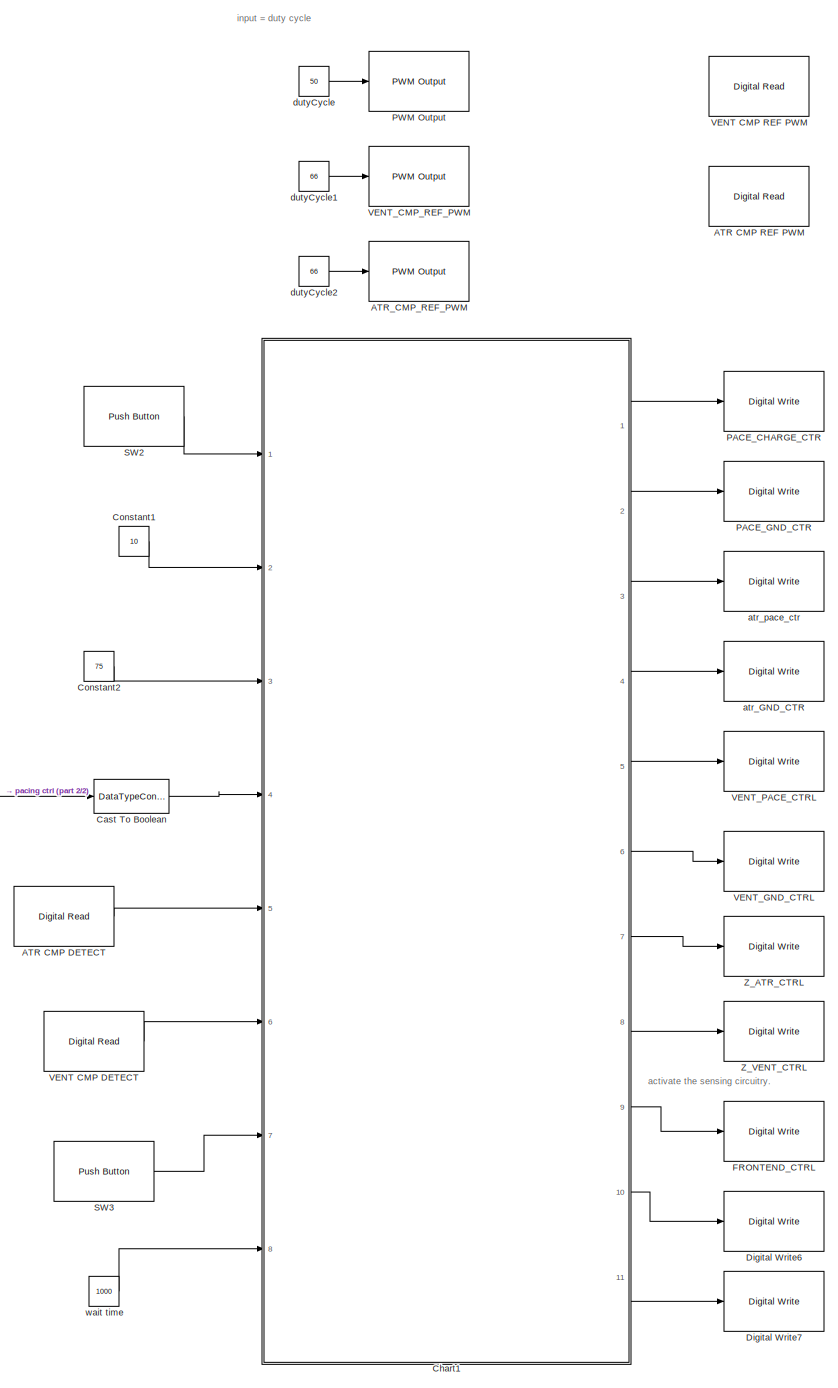
[diagram: root canvas - part 1/2, center side, full height]
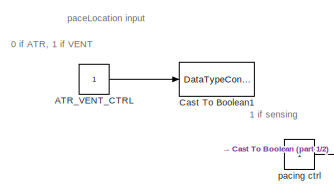
[diagram: root canvas - part 2/2, middle left region]
MODEL slx_15095bf4b779
KIND model
CONFIG AbsTol = auto
CONFIG EnableMultiTasking = on
CONFIG FixedStep = 1e-3
CONFIG MaxStep = auto
CONFIG MinStep = auto
CONFIG RelTol = 1e-3
CONFIG SampleTimeConstraint = Unconstrained
CONFIG Solver = FixedStepAuto
CONFIG SolverName = FixedStepAuto
CONFIG StartTime = 0.0
CONFIG StopTime = 10.0
BLOCK [Reference] ATR CMP DETECT  REF=frdmk64flib/Digital Read
  Ports = [0, 1]
  SourceBlock = frdmk64flib/Digital Read
  SourceProductBaseCode = EC_FRDM_K64F
  SourceType = freedomk64f.DigitalRead
BLOCK [Reference] ATR CMP REF PWM  REF=frdmk64flib/Digital Read
  Commented = on
  Ports = [0, 1]
  SourceBlock = frdmk64flib/Digital Read
  SourceProductBaseCode = EC_FRDM_K64F
  SourceType = freedomk64f.DigitalRead
BLOCK [Reference] ATR_CMP_REF_PWM  REF=frdmk64flib/PWM Output
  Ports = [1]
  SourceBlock = frdmk64flib/PWM Output
  SourceProductBaseCode = EC_FRDM_K64F
  SourceType = freedomk64f.PWMOutput
BLOCK [Constant] ATR_VENT_CTRL
BLOCK [DataTypeConversion] Cast To Boolean
  OutDataTypeStr = boolean
  RndMeth = Floor
  SaturateOnIntegerOverflow = off
BLOCK [DataTypeConversion] Cast To Boolean1
  OutDataTypeStr = boolean
  RndMeth = Floor
  SaturateOnIntegerOverflow = off
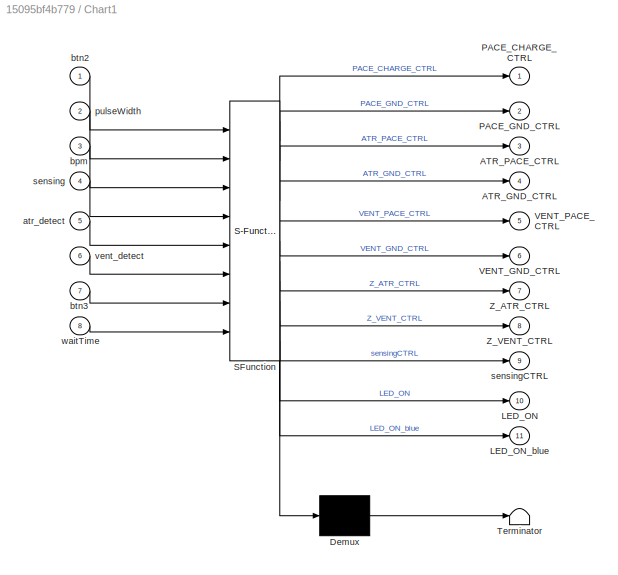
BLOCK [SubSystem] Chart1
  ErrorFcn = Stateflow.Translate.translate
  PermitHierarchicalResolution = ExplicitOnly
  Ports = [8, 11]
  RequestExecContextInheritance = off
  SFBlockType = Chart
  TreatAsAtomicUnit = on
BLOCK [Demux] Chart1/ Demux 
  Outputs = 1
  Ports = [1, 1]
BLOCK [S-Function] Chart1/ SFunction 
  EnableBusSupport = on
  FunctionName = sf_sfun
  PortCounts = [8 12]
  Ports = [8, 12]
  SFcnIsStateOwnerBlock = off
  SFunctionDeploymentMode = off
  Tag = Stateflow S-Function 1
BLOCK [Terminator] Chart1/ Terminator 
BLOCK [Outport] Chart1/ATR_GND_CTRL
  Port = 4
BLOCK [Outport] Chart1/ATR_PACE_CTRL
  Port = 3
BLOCK [Outport] Chart1/LED_ON
  Port = 10
BLOCK [Outport] Chart1/LED_ON_blue
  Port = 11
BLOCK [Outport] Chart1/PACE_CHARGE_CTRL
BLOCK [Outport] Chart1/PACE_GND_CTRL
  Port = 2
BLOCK [Outport] Chart1/VENT_GND_CTRL
  Port = 6
BLOCK [Outport] Chart1/VENT_PACE_CTRL
  Port = 5
BLOCK [Outport] Chart1/Z_ATR_CTRL
  Port = 7
BLOCK [Outport] Chart1/Z_VENT_CTRL
  Port = 8
BLOCK [Inport] Chart1/atr_detect
  Port = 5
BLOCK [Inport] Chart1/bpm
  Port = 3
BLOCK [Inport] Chart1/btn2
BLOCK [Inport] Chart1/btn3
  Port = 7
BLOCK [Inport] Chart1/pulseWidth
  Port = 2
BLOCK [Inport] Chart1/sensing
  Port = 4
BLOCK [Outport] Chart1/sensingCTRL
  Port = 9
BLOCK [Inport] Chart1/vent_detect
  Port = 6
BLOCK [Inport] Chart1/waitTime
  Port = 8
BLOCK [Constant] Constant1
  Value = 10
BLOCK [Constant] Constant2
  Value = 75
BLOCK [Reference] Digital Write6  REF=frdmk64flib/Digital Write
  Ports = [1]
  SourceBlock = frdmk64flib/Digital Write
  SourceProductBaseCode = EC_FRDM_K64F
  SourceType = freedomk64f.DigitalWrite
BLOCK [Reference] Digital Write7  REF=frdmk64flib/Digital Write
  Ports = [1]
  SourceBlock = frdmk64flib/Digital Write
  SourceProductBaseCode = EC_FRDM_K64F
  SourceType = freedomk64f.DigitalWrite
BLOCK [Reference] FRONTEND_CTRL  REF=frdmk64flib/Digital Write
  Ports = [1]
  SourceBlock = frdmk64flib/Digital Write
  SourceProductBaseCode = EC_FRDM_K64F
  SourceType = freedomk64f.DigitalWrite
BLOCK [Reference] PACE_CHARGE_CTR  REF=frdmk64flib/Digital Write
  Ports = [1]
  SourceBlock = frdmk64flib/Digital Write
  SourceProductBaseCode = EC_FRDM_K64F
  SourceType = freedomk64f.DigitalWrite
BLOCK [Reference] PACE_GND_CTR  REF=frdmk64flib/Digital Write
  Ports = [1]
  SourceBlock = frdmk64flib/Digital Write
  SourceProductBaseCode = EC_FRDM_K64F
  SourceType = freedomk64f.DigitalWrite
BLOCK [Reference] PWM Output  REF=frdmk64flib/PWM Output
  Ports = [1]
  SourceBlock = frdmk64flib/PWM Output
  SourceProductBaseCode = EC_FRDM_K64F
  SourceType = freedomk64f.PWMOutput
BLOCK [Reference] SW2  REF=frdmk64flib/Push Button
  Ports = [0, 1]
  SourceBlock = frdmk64flib/Push Button
  SourceProductBaseCode = EC_FRDM_K64F
  SourceType = freedomk64f.PushButton
BLOCK [Reference] SW3  REF=frdmk64flib/Push Button
  Ports = [0, 1]
  SourceBlock = frdmk64flib/Push Button
  SourceProductBaseCode = EC_FRDM_K64F
  SourceType = freedomk64f.PushButton
BLOCK [Reference] VENT CMP DETECT  REF=frdmk64flib/Digital Read
  Ports = [0, 1]
  SourceBlock = frdmk64flib/Digital Read
  SourceProductBaseCode = EC_FRDM_K64F
  SourceType = freedomk64f.DigitalRead
BLOCK [Reference] VENT CMP REF PWM  REF=frdmk64flib/Digital Read
  Commented = on
  Ports = [0, 1]
  SourceBlock = frdmk64flib/Digital Read
  SourceProductBaseCode = EC_FRDM_K64F
  SourceType = freedomk64f.DigitalRead
BLOCK [Reference] VENT_CMP_REF_PWM  REF=frdmk64flib/PWM Output
  Ports = [1]
  SourceBlock = frdmk64flib/PWM Output
  SourceProductBaseCode = EC_FRDM_K64F
  SourceType = freedomk64f.PWMOutput
BLOCK [Reference] VENT_GND_CTRL  REF=frdmk64flib/Digital Write
  Ports = [1]
  SourceBlock = frdmk64flib/Digital Write
  SourceProductBaseCode = EC_FRDM_K64F
  SourceType = freedomk64f.DigitalWrite
BLOCK [Reference] VENT_PACE_CTRL  REF=frdmk64flib/Digital Write
  Ports = [1]
  SourceBlock = frdmk64flib/Digital Write
  SourceProductBaseCode = EC_FRDM_K64F
  SourceType = freedomk64f.DigitalWrite
BLOCK [Reference] Z_ATR_CTRL  REF=frdmk64flib/Digital Write
  Ports = [1]
  SourceBlock = frdmk64flib/Digital Write
  SourceProductBaseCode = EC_FRDM_K64F
  SourceType = freedomk64f.DigitalWrite
BLOCK [Reference] Z_VENT_CTRL  REF=frdmk64flib/Digital Write
  Ports = [1]
  SourceBlock = frdmk64flib/Digital Write
  SourceProductBaseCode = EC_FRDM_K64F
  SourceType = freedomk64f.DigitalWrite
BLOCK [Reference] atr_GND_CTR  REF=frdmk64flib/Digital Write
  Ports = [1]
  SourceBlock = frdmk64flib/Digital Write
  SourceProductBaseCode = EC_FRDM_K64F
  SourceType = freedomk64f.DigitalWrite
BLOCK [Reference] atr_pace_ctr  REF=frdmk64flib/Digital Write
  Ports = [1]
  SourceBlock = frdmk64flib/Digital Write
  SourceProductBaseCode = EC_FRDM_K64F
  SourceType = freedomk64f.DigitalWrite
BLOCK [Constant] dutyCycle
  Value = 50
BLOCK [Constant] dutyCycle1
  Value = 66
BLOCK [Constant] dutyCycle2
  Value = 66
BLOCK [Constant] pacing ctrl
BLOCK [Constant] wait time
  Value = 1000
ANNOTATION (root): 0 if ATR, 1 if VENT
ANNOTATION (root): 1 if sensing
ANNOTATION (root): activate the sensing circuitry.
ANNOTATION (root): input = duty cycle
ANNOTATION (root): paceLocation input
LINE ATR CMP DETECT:1 -> Chart1:5
LINE ATR_VENT_CTRL:1 -> Cast To Boolean1:1
LINE Cast To Boolean:1 -> Chart1:4
LINE Chart1:1 -> PACE_CHARGE_CTR:1
LINE Chart1:10 -> Digital Write6:1
LINE Chart1:11 -> Digital Write7:1
LINE Chart1:2 -> PACE_GND_CTR:1
LINE Chart1:3 -> atr_pace_ctr:1
LINE Chart1:4 -> atr_GND_CTR:1
LINE Chart1:5 -> VENT_PACE_CTRL:1
LINE Chart1:6 -> VENT_GND_CTRL:1
LINE Chart1:7 -> Z_ATR_CTRL:1
LINE Chart1:8 -> Z_VENT_CTRL:1
LINE Chart1:9 -> FRONTEND_CTRL:1
LINE Constant1:1 -> Chart1:2
LINE Constant2:1 -> Chart1:3
LINE SW2:1 -> Chart1:1
LINE SW3:1 -> Chart1:7
LINE VENT CMP DETECT:1 -> Chart1:6
LINE dutyCycle1:1 -> VENT_CMP_REF_PWM:1
LINE dutyCycle2:1 -> ATR_CMP_REF_PWM:1
LINE dutyCycle:1 -> PWM Output:1
LINE pacing ctrl:1 -> Cast To Boolean:1
LINE wait time:1 -> Chart1:8
CHART Chart1 states=12 transitions=19
  STATE_LABEL 'SENSING_VENT_TRUE \nentry:\nsensingCTRL = true;'
  STATE_LABEL 'VENT PACING'
  STATE_LABEL 'VENT_CHARGING_AND_DISCHARGE \nentry:\nPACE_GND_CTRL = true; % 10\nATR_PACE_CTRL = false;\nZ_VENT_CTRL = false;\nZ_ATR_CTRL = false\nVENT_PACE_CTRL = false;\nVENT_GND_CTRL = true; % 7\nATR_GND_CTRL = false; % 7\nPACE_CHARGE_CTRL = true;\nsecPerBeat = 60/bpm;\nsensingCTRL = sensing;\n%led test\nLED_ON = true;'
  STATE_LABEL 'VENT_PACING\nentry:\nPACE_GND_CTRL = true; %10\nVENT_PACE_CTRL = true;\nVENT_GND_CTRL = false; %7\nZ_VENT_CTRL = false;\nZ_ATR_CTRL = false;\nATR_GND_CTRL = false; %7\nATR_PACE_CTRL = false; % 6\nsensingCTRL = sensing;\nLED_ON = false;\n'
  STATE_LABEL 'changeLocation1\nentry:\nbtn2 == false;'
  STATE_LABEL 'changeLocation\nentry:\nbtn2 == false;'
  STATE_LABEL 'vent'
  STATE_LABEL 'atr'
  STATE_LABEL 'ATR PACING'
  STATE_LABEL 'ATR_CHARGING_AND_DISCHARGE\nentry:\nsecPerBeat = 60/bpm;\nsensingCTRL = sensing;\nATR_PACE_CTRL = false;\nVENT_PACE_CTRL = false;\nPACE_CHARGE_CTRL = true;\nPACE_GND_CTRL = true; % 10\nZ_VENT_CTRL = false;\nZ_ATR_CTRL = false;\nVENT_GND_CTRL = false; % 7\nATR_GND_CTRL = true; % 7\n%testing\nLED_ON = false;\nLED_ON_blue = false;'
  STATE_LABEL 'ATR_PACING\nentry:\nPACE_GND_CTRL = true; %10\nVENT_PACE_CTRL = false;\nVENT_GND_CTRL = false; %7\nZ_VENT_CTRL = false;\nZ_ATR_CTRL = false;\nATR_GND_CTRL = false; %7\nATR_PACE_CTRL = true; % 6\n%testing\nLED_ON_blue = true;\n'
  STATE_LABEL 'SENSING_ATR_TRUE \nentry:\nsensingCTRL = true;'
CHART  states=0 transitions=0
